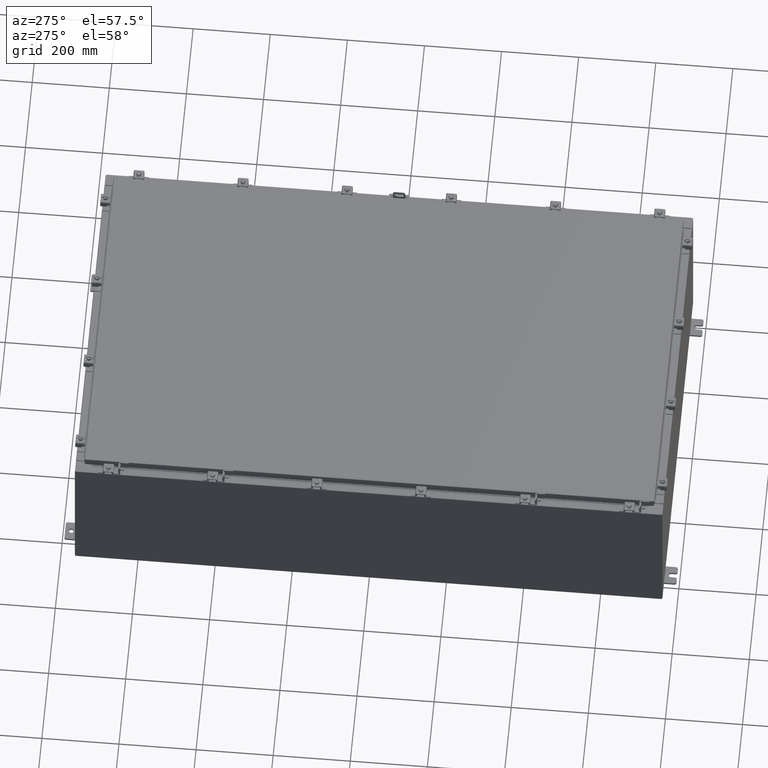
[diagram: clean part render]
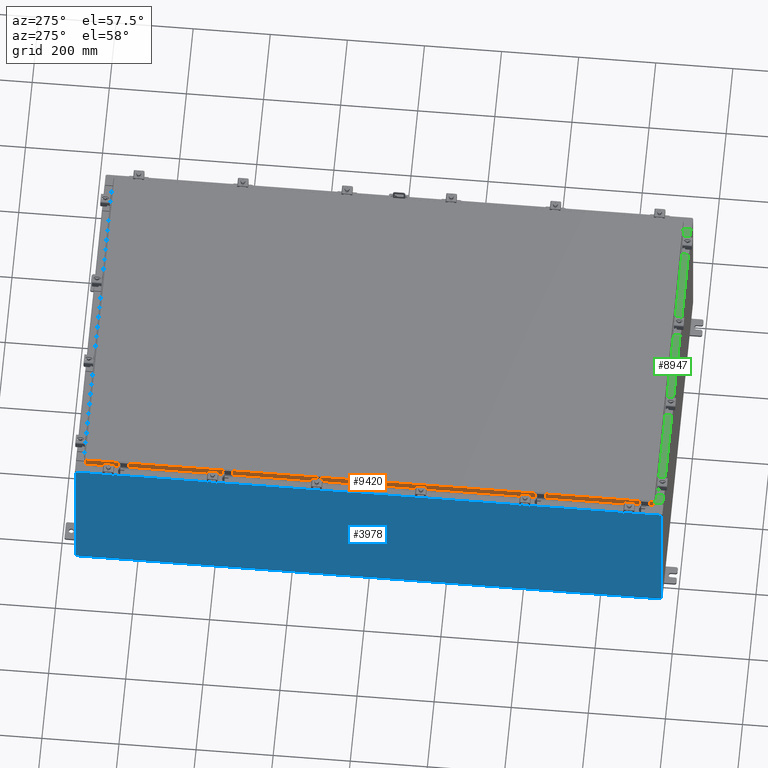
[diagram: same view with three faces highlighted in distinct colors, each labeled with its STEP entity id]
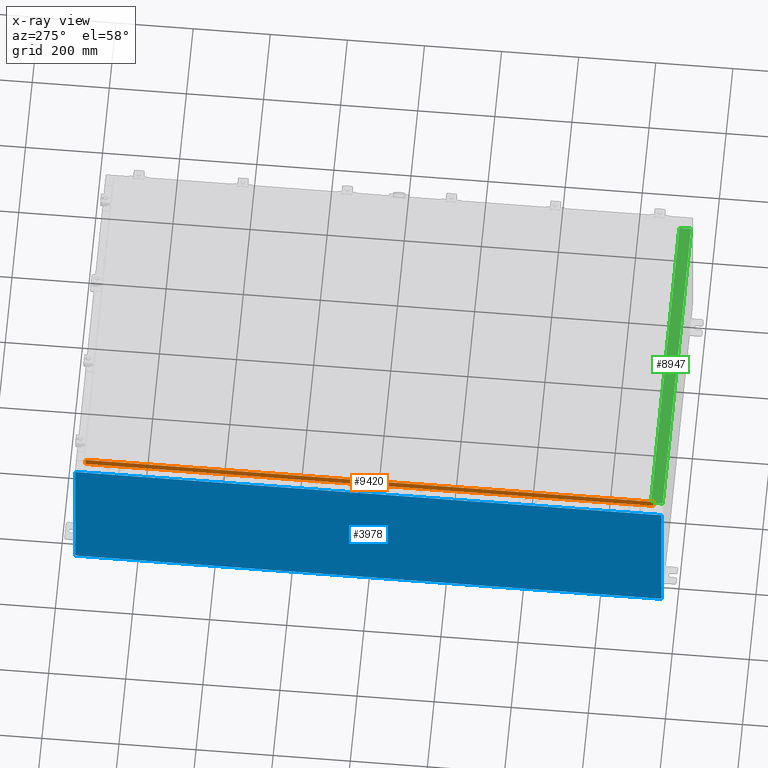
[diagram: x-ray of the same camera — body ghosted, the three highlighted faces saturated]
A machine part, auxiliary view with three faces highlighted in distinct colors.
The next image is the same camera in x-ray (body ghosted, the three faces saturated) — at least one of them is partly hidden behind the body in this view.
Their STEP definitions:

[orange] entity #9420 — the highlighted planar face has unit normal (1, 0, -0).
#89 = LINE ( 'NONE', #2165, #10619 ) ;
#150 = EDGE_CURVE ( 'NONE', #2318, #14395, #25906, .T. ) ;
#654 = VECTOR ( 'NONE', #6087, 39.37007874015748100 ) ;
#1573 = VECTOR ( 'NONE', #25928, 39.37007874015748100 ) ;
#2165 = CARTESIAN_POINT ( 'NONE',  ( -17.07799999999999900, -29.09400000000000500, -0.8499999999999996400 ) ) ;
#2318 = VERTEX_POINT ( 'NONE', #23203 ) ;
#2384 = EDGE_CURVE ( 'NONE', #7240, #14395, #12788, .T. ) ;
#2406 = CARTESIAN_POINT ( 'NONE',  ( -17.07799999999999900, 29.00515786437627200, -0.8499999999999927600 ) ) ;
#3392 = CARTESIAN_POINT ( 'NONE',  ( -17.07799999999999600, -29.00515786437627600, -0.08770000000000007000 ) ) ;
#3621 = ORIENTED_EDGE ( 'NONE', *, *, #16760, .F. ) ;
#3649 = LINE ( 'NONE', #23008, #14265 ) ;
#3821 = CARTESIAN_POINT ( 'NONE',  ( -17.07799999999999600, -29.09400000000000500, -0.08770000000000007000 ) ) ;
#4293 = DIRECTION ( 'NONE',  ( 4.379057701015054300E-047, 1.000000000000000000, 1.197190551977018000E-016 ) ) ;
#4886 = FACE_OUTER_BOUND ( 'NONE', #24344, .T. ) ;
#5415 = ORIENTED_EDGE ( 'NONE', *, *, #150, .T. ) ;
#5440 = PLANE ( 'NONE',  #23041 ) ;
#6087 = DIRECTION ( 'NONE',  ( -0.0000000000000000000, 1.000000000000000000, -0.0000000000000000000 ) ) ;
#6369 = DIRECTION ( 'NONE',  ( -2.818880942772360100E-015, 6.982962677686265900E-015, -1.000000000000000000 ) ) ;
#7240 = VERTEX_POINT ( 'NONE', #22517 ) ;
#8225 = LINE ( 'NONE', #27495, #654 ) ;
#9420 = ADVANCED_FACE ( 'NONE', ( #4886 ), #5440, .F. ) ;
#10167 = DIRECTION ( 'NONE',  ( 3.374737631835139200E-031, -1.000000000000000000, -9.198750492177080800E-046 ) ) ;
#10619 = VECTOR ( 'NONE', #4293, 39.37007874015748100 ) ;
#11127 = DIRECTION ( 'NONE',  ( -2.818880942772360100E-015, 0.0000000000000000000, -1.000000000000000000 ) ) ;
#11204 = CARTESIAN_POINT ( 'NONE',  ( -17.07799999999998500, -28.25515786437626500, -0.8500000000000017500 ) ) ;
#11297 = DIRECTION ( 'NONE',  ( 1.000000000000000000, 3.374737631835138300E-031, -2.818880942772360100E-015 ) ) ;
#11686 = VERTEX_POINT ( 'NONE', #17765 ) ;
#12788 = LINE ( 'NONE', #18209, #1573 ) ;
#14247 = ORIENTED_EDGE ( 'NONE', *, *, #21657, .F. ) ;
#14265 = VECTOR ( 'NONE', #6369, 39.37007874015748100 ) ;
#14395 = VERTEX_POINT ( 'NONE', #2406 ) ;
#15164 = VECTOR ( 'NONE', #27485, 39.37007874015748100 ) ;
#15795 = EDGE_CURVE ( 'NONE', #2318, #21561, #15993, .T. ) ;
#15993 = LINE ( 'NONE', #3821, #20996 ) ;
#16760 = EDGE_CURVE ( 'NONE', #21561, #11686, #3649, .T. ) ;
#16924 = ORIENTED_EDGE ( 'NONE', *, *, #2384, .F. ) ;
#17765 = CARTESIAN_POINT ( 'NONE',  ( -17.07799999999999900, -29.00515786437626500, -0.8499999999999996400 ) ) ;
#18209 = CARTESIAN_POINT ( 'NONE',  ( -17.07799999999999900, -29.09400000000000500, -0.8499999999999996400 ) ) ;
#19229 = CARTESIAN_POINT ( 'NONE',  ( -17.07799999999999600, 29.00515786437626500, 2.509435972240157400E-013 ) ) ;
#19742 = CARTESIAN_POINT ( 'NONE',  ( -17.07799999999999600, -5.763376927648048400E-030, 4.840166239667793400E-014 ) ) ;
#19747 = ORIENTED_EDGE ( 'NONE', *, *, #23115, .F. ) ;
#20996 = VECTOR ( 'NONE', #10167, 39.37007874015748100 ) ;
#21561 = VERTEX_POINT ( 'NONE', #3392 ) ;
#21657 = EDGE_CURVE ( 'NONE', #11686, #22705, #89, .T. ) ;
#22517 = CARTESIAN_POINT ( 'NONE',  ( -17.07799999999998500, 28.25515786437626500, -0.8500000000000017500 ) ) ;
#22705 = VERTEX_POINT ( 'NONE', #11204 ) ;
#23008 = CARTESIAN_POINT ( 'NONE',  ( -17.07799999999999600, -29.00515786437627200, -0.07469999999999978000 ) ) ;
#23041 = AXIS2_PLACEMENT_3D ( 'NONE', #19742, #11297, #11127 ) ;
#23115 = EDGE_CURVE ( 'NONE', #22705, #7240, #8225, .T. ) ;
#23203 = CARTESIAN_POINT ( 'NONE',  ( -17.07799999999999600, 29.00515786437626500, -0.08770000000000007000 ) ) ;
#23988 = ORIENTED_EDGE ( 'NONE', *, *, #15795, .F. ) ;
#24344 = EDGE_LOOP ( 'NONE', ( #23988, #5415, #16924, #19747, #14247, #3621 ) ) ;
#25906 = LINE ( 'NONE', #19229, #15164 ) ;
#25928 = DIRECTION ( 'NONE',  ( 4.379057701015054300E-047, 1.000000000000000000, 1.197190551977018000E-016 ) ) ;
#27485 = DIRECTION ( 'NONE',  ( -2.818880942772360100E-015, 6.982962677686265900E-015, -1.000000000000000000 ) ) ;
#27495 = CARTESIAN_POINT ( 'NONE',  ( -17.07799999999998500, -28.25515786437626500, -0.8500000000000017500 ) ) ;

[blue] entity #3978 — the highlighted planar face has unit normal (1, 0, 0).
#890 = CARTESIAN_POINT ( 'NONE',  ( -18.00000000000006000, -29.92530000000001800, 15.83759999999999700 ) ) ;
#980 = CARTESIAN_POINT ( 'NONE',  ( -18.00000000000000400, 29.92529999999998600, 0.01299999999999984800 ) ) ;
#1886 = EDGE_CURVE ( 'NONE', #17552, #15538, #21446, .T. ) ;
#2604 = LINE ( 'NONE', #9272, #13200 ) ;
#3687 = EDGE_LOOP ( 'NONE', ( #7935, #17700, #12253, #21413 ) ) ;
#3978 = ADVANCED_FACE ( 'NONE', ( #9043 ), #19008, .F. ) ;
#4470 = VECTOR ( 'NONE', #20191, 39.37007874015748100 ) ;
#4804 = LINE ( 'NONE', #24005, #26860 ) ;
#7935 = ORIENTED_EDGE ( 'NONE', *, *, #1886, .T. ) ;
#8674 = EDGE_CURVE ( 'NONE', #15538, #13933, #2604, .T. ) ;
#9043 = FACE_OUTER_BOUND ( 'NONE', #3687, .T. ) ;
#9172 = DIRECTION ( 'NONE',  ( 3.430827668758847900E-015, 0.0000000000000000000, -1.000000000000000000 ) ) ;
#9272 = CARTESIAN_POINT ( 'NONE',  ( -18.00000000000000400, 29.92529999999998900, -6.201571169367084500E-014 ) ) ;
#9669 = EDGE_CURVE ( 'NONE', #26770, #13933, #12185, .T. ) ;
#12185 = LINE ( 'NONE', #15333, #22220 ) ;
#12253 = ORIENTED_EDGE ( 'NONE', *, *, #9669, .F. ) ;
#13200 = VECTOR ( 'NONE', #9172, 39.37007874015748100 ) ;
#13933 = VERTEX_POINT ( 'NONE', #980 ) ;
#14163 = DIRECTION ( 'NONE',  ( -0.0000000000000000000, 1.000000000000000000, -0.0000000000000000000 ) ) ;
#15333 = CARTESIAN_POINT ( 'NONE',  ( -18.00000000000000400, 29.92529999999998900, 0.01299999999999984700 ) ) ;
#15538 = VERTEX_POINT ( 'NONE', #17854 ) ;
#17552 = VERTEX_POINT ( 'NONE', #17784 ) ;
#17632 = DIRECTION ( 'NONE',  ( -3.430827668758847900E-015, 0.0000000000000000000, 1.000000000000000000 ) ) ;
#17700 = ORIENTED_EDGE ( 'NONE', *, *, #8674, .T. ) ;
#17784 = CARTESIAN_POINT ( 'NONE',  ( -18.00000000000006000, -29.92530000000001100, 15.83759999999999700 ) ) ;
#17854 = CARTESIAN_POINT ( 'NONE',  ( -18.00000000000005700, 29.92529999999998900, 15.83759999999999700 ) ) ;
#18717 = DIRECTION ( 'NONE',  ( 3.430827668758847900E-015, 0.0000000000000000000, -1.000000000000000000 ) ) ;
#18771 = DIRECTION ( 'NONE',  ( 1.000000000000000000, 0.0000000000000000000, 3.430827668758847900E-015 ) ) ;
#18795 = EDGE_CURVE ( 'NONE', #26770, #17552, #4804, .T. ) ;
#19008 = PLANE ( 'NONE',  #20281 ) ;
#19222 = CARTESIAN_POINT ( 'NONE',  ( -18.00000000000000400, 0.0000000000000000000, -6.201571169367084500E-014 ) ) ;
#20191 = DIRECTION ( 'NONE',  ( 0.0000000000000000000, 1.000000000000000000, 0.0000000000000000000 ) ) ;
#20281 = AXIS2_PLACEMENT_3D ( 'NONE', #19222, #18771, #18717 ) ;
#21413 = ORIENTED_EDGE ( 'NONE', *, *, #18795, .T. ) ;
#21446 = LINE ( 'NONE', #890, #4470 ) ;
#22220 = VECTOR ( 'NONE', #14163, 39.37007874015748100 ) ;
#23828 = CARTESIAN_POINT ( 'NONE',  ( -18.00000000000000400, -29.92530000000001100, 0.01299999999999984700 ) ) ;
#24005 = CARTESIAN_POINT ( 'NONE',  ( -18.00000000000000400, -29.92530000000001100, -6.201571169367084500E-014 ) ) ;
#26770 = VERTEX_POINT ( 'NONE', #23828 ) ;
#26860 = VECTOR ( 'NONE', #17632, 39.37007874015748100 ) ;

[green] entity #8947 — the highlighted planar face has unit normal (-0, -0, 1).
#41 = DIRECTION ( 'NONE',  ( 0.0000000000000000000, -1.000000000000000000, 3.566381192773190000E-015 ) ) ;
#370 = ORIENTED_EDGE ( 'NONE', *, *, #5146, .T. ) ;
#731 = ORIENTED_EDGE ( 'NONE', *, *, #15472, .F. ) ;
#803 = CARTESIAN_POINT ( 'NONE',  ( -16.63720000000000000, -0.07469999999999973900, 8.000000000000001800 ) ) ;
#1452 = LINE ( 'NONE', #20681, #22748 ) ;
#1672 = DIRECTION ( 'NONE',  ( 6.568047492761433500E-017, 3.566381192773190000E-015, 1.000000000000000000 ) ) ;
#2480 = CARTESIAN_POINT ( 'NONE',  ( 5.250912337413644300E-016, 2.852545452309695200E-014, 8.000000000000001800 ) ) ;
#3685 = PLANE ( 'NONE',  #4980 ) ;
#3780 = LINE ( 'NONE', #15710, #20069 ) ;
#4098 = EDGE_CURVE ( 'NONE', #4102, #15561, #3780, .T. ) ;
#4102 = VERTEX_POINT ( 'NONE', #15323 ) ;
#4353 = LINE ( 'NONE', #803, #26388 ) ;
#4980 = AXIS2_PLACEMENT_3D ( 'NONE', #2480, #1672, #41 ) ;
#5146 = EDGE_CURVE ( 'NONE', #4102, #19039, #1452, .T. ) ;
#5968 = EDGE_LOOP ( 'NONE', ( #731, #17588, #21170, #370 ) ) ;
#7559 = CARTESIAN_POINT ( 'NONE',  ( -16.63720000000000000, -0.08770000000000136000, 8.000000000000001800 ) ) ;
#8378 = CARTESIAN_POINT ( 'NONE',  ( -16.63720000000000000, -1.287299999999999400, 8.000000000000007100 ) ) ;
#8947 = ADVANCED_FACE ( 'NONE', ( #18559 ), #3685, .T. ) ;
#9421 = VECTOR ( 'NONE', #17300, 39.37007874015748100 ) ;
#12657 = EDGE_CURVE ( 'NONE', #15561, #27341, #15092, .T. ) ;
#15092 = LINE ( 'NONE', #23688, #9421 ) ;
#15323 = CARTESIAN_POINT ( 'NONE',  ( 16.63720000000000400, -0.08770000000000102700, 8.000000000000000000 ) ) ;
#15472 = EDGE_CURVE ( 'NONE', #27341, #19039, #4353, .T. ) ;
#15561 = VERTEX_POINT ( 'NONE', #24423 ) ;
#15710 = CARTESIAN_POINT ( 'NONE',  ( 16.63720000000000000, -1.300299999999999800, 8.000000000000003600 ) ) ;
#15734 = DIRECTION ( 'NONE',  ( -0.0000000000000000000, -1.000000000000000000, 3.566381192773190000E-015 ) ) ;
#17300 = DIRECTION ( 'NONE',  ( -1.000000000000000000, 0.0000000000000000000, 0.0000000000000000000 ) ) ;
#17588 = ORIENTED_EDGE ( 'NONE', *, *, #12657, .F. ) ;
#18559 = FACE_OUTER_BOUND ( 'NONE', #5968, .T. ) ;
#19039 = VERTEX_POINT ( 'NONE', #7559 ) ;
#19901 = DIRECTION ( 'NONE',  ( -0.0000000000000000000, 1.000000000000000000, -3.566381192773190000E-015 ) ) ;
#20069 = VECTOR ( 'NONE', #15734, 39.37007874015748100 ) ;
#20681 = CARTESIAN_POINT ( 'NONE',  ( 5.308514113925181600E-016, -0.08770000000000136000, 8.000000000000001800 ) ) ;
#21170 = ORIENTED_EDGE ( 'NONE', *, *, #4098, .F. ) ;
#21307 = DIRECTION ( 'NONE',  ( -1.000000000000000000, -6.568047492761434800E-017, 6.568047492761457000E-017 ) ) ;
#22748 = VECTOR ( 'NONE', #21307, 39.37007874015748100 ) ;
#23688 = CARTESIAN_POINT ( 'NONE',  ( 16.63720000000000400, -1.287300000000000300, 8.000000000000003600 ) ) ;
#24423 = CARTESIAN_POINT ( 'NONE',  ( 16.63720000000000000, -1.287300000000000300, 8.000000000000003600 ) ) ;
#26388 = VECTOR ( 'NONE', #19901, 39.37007874015748100 ) ;
#27341 = VERTEX_POINT ( 'NONE', #8378 ) ;